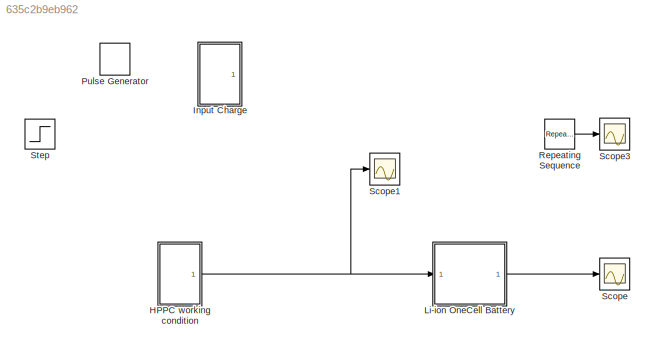
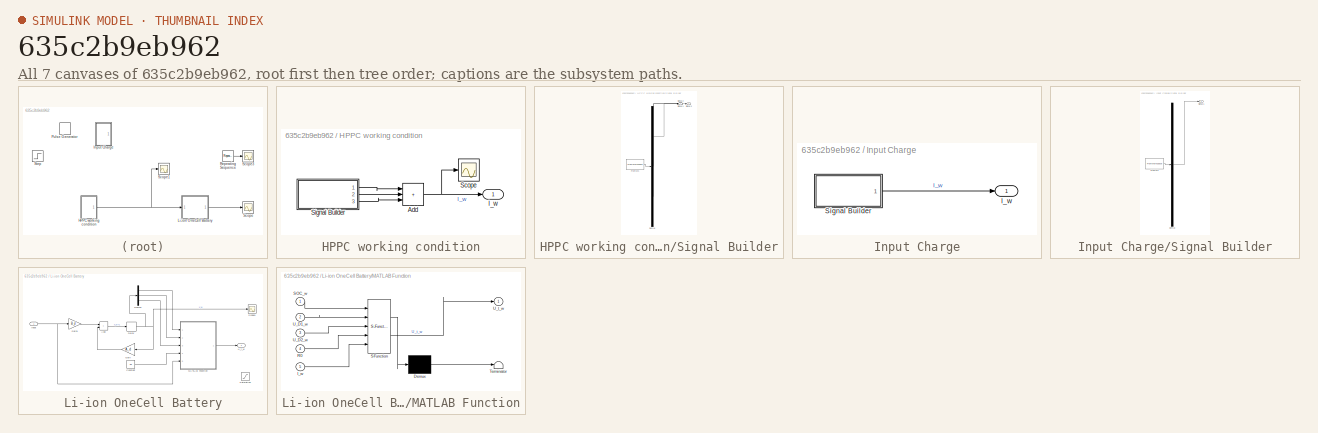
[diagram: thumbnail index - all 7 canvases of the model, root first then tree order]
MODEL slx_635c2b9eb962
KIND model
CONFIG AbsTol = auto
CONFIG EnableMultiTasking = off
CONFIG FixedStep = auto
CONFIG MaxStep = auto
CONFIG MinStep = auto
CONFIG RelTol = 1e-3
CONFIG SampleTimeConstraint = Unconstrained
CONFIG SolverName = VariableStepAuto
CONFIG StartTime = 0.0
CONFIG StopTime = 350
BLOCK [SubSystem] HPPC working condition
  Ports = [0, 1]
  RequestExecContextInheritance = off
BLOCK [Sum] HPPC working condition/Add
  IconShape = rectangular
  Inputs = +++
  Ports = [3, 1]
BLOCK [Outport] HPPC working condition/I_w
BLOCK [Scope] HPPC working condition/Scope
  Floating = off
  NumInputPorts = 1
  Ports = [1]
  ScopeSpecificationString = Simulink.scopes.TimeScopeBlockCfg('CurrentConfiguration', extmgr.ConfigurationSet(extmgr.Configuration('Core','General UI',true),extmgr.Configuration('Core','Source UI',true),extmgr.Configuration('Sources','WiredSimulink',true,'DataLoggingVariableName','ScopeData3'),extmgr.Configuration('Visuals','Time Domain',true,'SerializedDisplays',{struct('MinYLimReal','-3.3','MaxYLimReal','5.7','YLabelReal',...<+1407ch>
BLOCK [SubSystem] HPPC working condition/Signal Builder
  ClipboardFcn = sigbuilder_block('clipboard');
  CloseFcn = sigbuilder_block('close');
  ContinueFcn = sigbuilder_block('continue');
  CopyFcn = sigbuilder_block('copy');
  DeleteFcn = sigbuilder_block('delete');
  LoadFcn = sigbuilder_block('load');
  MaskHideContents = on
  ModelCloseFcn = sigbuilder_block('modelClose');
  NameChangeFcn = sigbuilder_block('namechange');
  OpenFcn = sigbuilder_block('open',[5.4 36 1141.2 516.6 ]);
  PauseFcn = sigbuilder_block('pause');
  Ports = [0, 3]
  PreSaveFcn = sigbuilder_block('preSave');
  RequestExecContextInheritance = off
  StartFcn = sigbuilder_block('start');
  StopFcn = sigbuilder_block('stop');
  Tag = STV Subsys
BLOCK [Demux] HPPC working condition/Signal Builder/Demux
  DisplayOption = none
  Outputs = 3
  Ports = [1, 3]
  Tag = STV Demux
BLOCK [FromWorkspace] HPPC working condition/Signal Builder/FromWs
  Tag = STV FromWs
  VariableName = tuvar
BLOCK [Outport] HPPC working condition/Signal Builder/Signal 1
  Tag = STV Outport
BLOCK [Outport] HPPC working condition/Signal Builder/Signal 2
  Port = 2
  Tag = STV Outport
BLOCK [Outport] HPPC working condition/Signal Builder/Signal 3
  Port = 3
  Tag = STV Outport
BLOCK [SubSystem] Input Charge
  Commented = on
  Ports = [0, 1]
  RequestExecContextInheritance = off
BLOCK [Outport] Input Charge/I_w
BLOCK [SubSystem] Input Charge/Signal Builder
  ClipboardFcn = sigbuilder_block('clipboard');
  CloseFcn = sigbuilder_block('close');
  ContinueFcn = sigbuilder_block('continue');
  CopyFcn = sigbuilder_block('copy');
  DeleteFcn = sigbuilder_block('delete');
  LoadFcn = sigbuilder_block('load');
  MaskHideContents = on
  ModelCloseFcn = sigbuilder_block('modelClose');
  NameChangeFcn = sigbuilder_block('namechange');
  OpenFcn = sigbuilder_block('open',[5.4 36 1141.2 516.6 ]);
  PauseFcn = sigbuilder_block('pause');
  Ports = [0, 1]
  PreSaveFcn = sigbuilder_block('preSave');
  RequestExecContextInheritance = off
  StartFcn = sigbuilder_block('start');
  StopFcn = sigbuilder_block('stop');
  Tag = STV Subsys
BLOCK [Demux] Input Charge/Signal Builder/Demux
  DisplayOption = none
  Outputs = 1
  Ports = [1, 1]
  Tag = STV Demux
BLOCK [FromWorkspace] Input Charge/Signal Builder/FromWs
  Tag = STV FromWs
  VariableName = tuvar
BLOCK [Outport] Input Charge/Signal Builder/Signal 1
  Tag = STV Outport
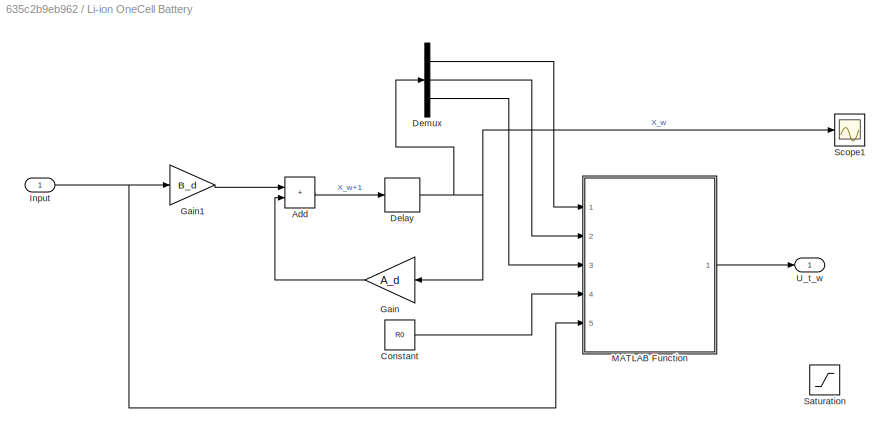
BLOCK [SubSystem] Li-ion OneCell Battery
  Ports = [1, 1]
  RequestExecContextInheritance = off
BLOCK [Sum] Li-ion OneCell Battery/Add
  IconShape = rectangular
  Ports = [2, 1]
BLOCK [Constant] Li-ion OneCell Battery/Constant
  Value = R0
BLOCK [Delay] Li-ion OneCell Battery/Delay
  DelayLength = 1
  InitialCondition = X0
  InputPortMap = u0
  Ports = [1, 1]
BLOCK [Demux] Li-ion OneCell Battery/Demux
  Outputs = 3
  Ports = [1, 3]
BLOCK [Gain] Li-ion OneCell Battery/Gain
  Gain = A_d
  Multiplication = Matrix(K*u)
  NameLocation = top
BLOCK [Gain] Li-ion OneCell Battery/Gain1
  Gain = B_d
  Multiplication = Matrix(K*u)
BLOCK [Inport] Li-ion OneCell Battery/Input
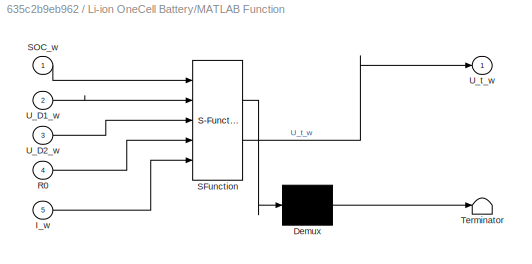
BLOCK [SubSystem] Li-ion OneCell Battery/MATLAB Function
  ErrorFcn = Stateflow.Translate.translate
  PermitHierarchicalResolution = ExplicitOnly
  Ports = [5, 1]
  RequestExecContextInheritance = off
  SFBlockType = MATLAB Function
  TreatAsAtomicUnit = on
BLOCK [Demux] Li-ion OneCell Battery/MATLAB Function/ Demux 
  Outputs = 1
  Ports = [1, 1]
BLOCK [S-Function] Li-ion OneCell Battery/MATLAB Function/ SFunction 
  EnableBusSupport = on
  FunctionName = sf_sfun
  PortCounts = [5 2]
  Ports = [5, 2]
  SFcnIsStateOwnerBlock = off
  SFunctionDeploymentMode = off
  Tag = Stateflow S-Function 2
BLOCK [Terminator] Li-ion OneCell Battery/MATLAB Function/ Terminator 
BLOCK [Inport] Li-ion OneCell Battery/MATLAB Function/I_w
  Port = 5
BLOCK [Inport] Li-ion OneCell Battery/MATLAB Function/R0
  Port = 4
BLOCK [Inport] Li-ion OneCell Battery/MATLAB Function/SOC_w
BLOCK [Inport] Li-ion OneCell Battery/MATLAB Function/U_D1_w
  Port = 2
BLOCK [Inport] Li-ion OneCell Battery/MATLAB Function/U_D2_w
  Port = 3
BLOCK [Outport] Li-ion OneCell Battery/MATLAB Function/U_t_w
BLOCK [Saturate] Li-ion OneCell Battery/Saturation
  Commented = on
  LowerLimit = 3
  UpperLimit = 4.2
BLOCK [Scope] Li-ion OneCell Battery/Scope1
  Floating = off
  NumInputPorts = 1
  Ports = [1]
  ScopeSpecificationString = Simulink.scopes.TimeScopeBlockCfg('CurrentConfiguration', extmgr.ConfigurationSet(extmgr.Configuration('Core','General UI',true),extmgr.Configuration('Core','Source UI',true),extmgr.Configuration('Sources','WiredSimulink',true,'DataLoggingVariableName','ScopeData1'),extmgr.Configuration('Visuals','Time Domain',true,'SerializedDisplays',{struct('MinYLimReal','-0.075','MaxYLimReal','0.675','YLabelRe...<+1862ch>
BLOCK [Outport] Li-ion OneCell Battery/U_t_w
BLOCK [DiscretePulseGenerator] Pulse Generator
  Amplitude = -2.4
  Commented = on
  Period = 0.05
  Ports = [0, 1]
  PulseType = Time based
  PulseWidth = 99
BLOCK [Reference] Repeating Sequence  REF=simulink/Sources/Repeating
Sequence
  Ports = [0, 1]
  SourceBlock = simulink/Sources/Repeating\nSequence
  SourceProductBaseCode = SL
  SourceType = Repeating table
BLOCK [Scope] Scope
  Floating = off
  NumInputPorts = 1
  Ports = [1]
  ScopeSpecificationString = Simulink.scopes.TimeScopeBlockCfg('CurrentConfiguration', extmgr.ConfigurationSet(extmgr.Configuration('Core','General UI',true),extmgr.Configuration('Core','Source UI',true),extmgr.Configuration('Sources','WiredSimulink',true),extmgr.Configuration('Visuals','Time Domain',true,'SerializedDisplays',{struct('MinYLimReal','3.60425','MaxYLimReal','3.99109','YLabelReal','','MinYLimMag','3.60425','MaxYL...<+1739ch>
BLOCK [Scope] Scope1
  Floating = off
  NumInputPorts = 1
  Ports = [1]
  ScopeSpecificationString = Simulink.scopes.TimeScopeBlockCfg('CurrentConfiguration', extmgr.ConfigurationSet(extmgr.Configuration('Core','General UI',true),extmgr.Configuration('Core','Source UI',true),extmgr.Configuration('Sources','WiredSimulink',true,'DataLoggingVariableName','ScopeData2'),extmgr.Configuration('Visuals','Time Domain',true,'SerializedDisplays',{struct('MinYLimReal','-3.3','MaxYLimReal','5.7','YLabelReal',...<+1465ch>
BLOCK [Scope] Scope3
  Floating = off
  NumInputPorts = 1
  Ports = [1]
  ScopeSpecificationString = Simulink.scopes.TimeScopeBlockCfg('CurrentConfiguration', extmgr.ConfigurationSet(extmgr.Configuration('Core','General UI',true),extmgr.Configuration('Core','Source UI',true),extmgr.Configuration('Sources','WiredSimulink',true,'DataLoggingVariableName','ScopeData4'),extmgr.Configuration('Visuals','Time Domain',true,'SerializedDisplays',{struct('MinYLimReal','-1.25','MaxYLimReal','11.25','YLabelRea...<+1421ch>
BLOCK [Step] Step
  After = -4.8
  Before = -4.8
  Commented = on
  SampleTime = 0
  Time = 90000
NET HPPC working condition/Add:1 -> HPPC working condition/I_w:1, HPPC working condition/Scope:1
LINE HPPC working condition/Signal Builder:1 -> HPPC working condition/Add:1
LINE HPPC working condition/Signal Builder:2 -> HPPC working condition/Add:2
LINE HPPC working condition/Signal Builder:3 -> HPPC working condition/Add:3
NET HPPC working condition:1 -> Li-ion OneCell Battery:1, Scope1:1
LINE Input Charge/Signal Builder:1 -> Input Charge/I_w:1
LINE Li-ion OneCell Battery/Add:1 -> Li-ion OneCell Battery/Delay:1
LINE Li-ion OneCell Battery/Constant:1 -> Li-ion OneCell Battery/MATLAB Function:4
NET Li-ion OneCell Battery/Delay:1 -> Li-ion OneCell Battery/Demux:1, Li-ion OneCell Battery/Gain:1, Li-ion OneCell Battery/Scope1:1
LINE Li-ion OneCell Battery/Demux:1 -> Li-ion OneCell Battery/MATLAB Function:1
LINE Li-ion OneCell Battery/Demux:2 -> Li-ion OneCell Battery/MATLAB Function:2
LINE Li-ion OneCell Battery/Demux:3 -> Li-ion OneCell Battery/MATLAB Function:3
LINE Li-ion OneCell Battery/Gain1:1 -> Li-ion OneCell Battery/Add:1
LINE Li-ion OneCell Battery/Gain:1 -> Li-ion OneCell Battery/Add:2
NET Li-ion OneCell Battery/Input:1 -> Li-ion OneCell Battery/Gain1:1, Li-ion OneCell Battery/MATLAB Function:5
LINE Li-ion OneCell Battery/MATLAB Function:1 -> Li-ion OneCell Battery/U_t_w:1
LINE Li-ion OneCell Battery:1 -> Scope:1
LINE Repeating Sequence:1 -> Scope3:1
note: NET lines group one-source signal fan-out (src -> all destinations, sorted); 1:1 wires keep LINE
CHART Li-ion OneCell Battery/MATLAB Function states=1 transitions=1
  STATE_LABEL 'eML_blk_kernel()'
  STATE_LABEL 'SCRIPT:\nfunction U_t_w = fcn(SOC_w,U_D1_w,U_D2_w,R0,I_w)\n\np1 = -2744.8612;\np2 = 15237.6802;\np3 = -36711.376;\np4 = 50213.0052;\np5 = -42785.081;\np6 = 23432.4265;\np7 = -8214.5826;\np8 = 1785.199;\np9 = -227.6861;\np10 = 16.3942;\np11 = 3.0665;\nf_ocv = p1.*SOC_w.^10 + p2.*SOC_w.^9 + p3.*SOC_w.^8 + p4.*SOC_w.^7 + p5.*SOC_w.^6 + p6.*SOC_w.^5 + p7.*SOC_w.^4 + p8.*SOC_w.^3 + p9.*SOC_w.^2 + p10.*SOC_w + p11;\n\n...<+54ch>'
CHART  states=0 transitions=0
